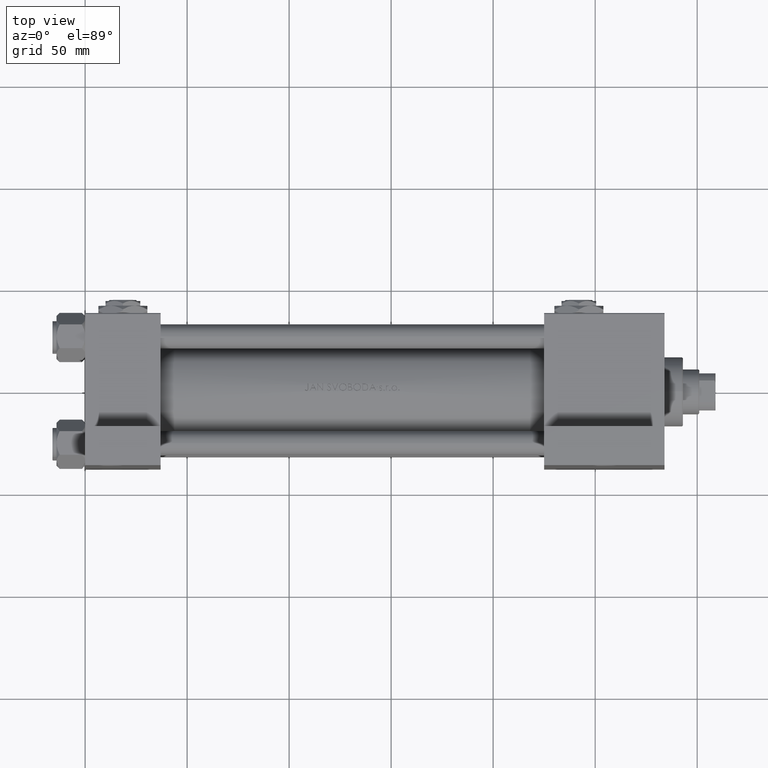
[diagram: clean part render]
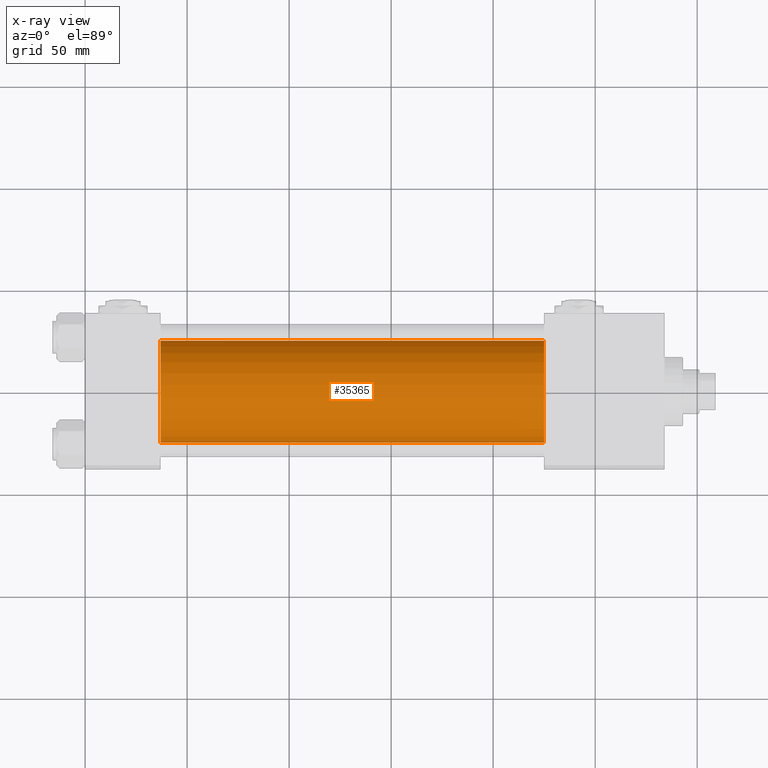
[diagram: x-ray — body ghosted, one internal face saturated and labeled with its STEP entity id]
A machine part, top view, then the same camera in x-ray: the body is ghosted and one INTERNAL B-rep face — a face not visible from any outside direction — is saturated and labeled: STEP entity #35365.
In plain terms, the highlighted cylindrical surface (partial cylindrical patch) has radius 25 mm, axis along (-1, -0, 0).
Its self-contained STEP definition (entity closure, byte-faithful):
#904 = DIRECTION ( 'NONE',  ( 1.000000000000000000, 0.000000000000000000, 0.000000000000000000 ) ) ;
#2604 = CIRCLE ( 'NONE', #13652, 25.00000000000000000 ) ;
#4486 = ORIENTED_EDGE ( 'NONE', *, *, #7815, .F. ) ;
#5462 = DIRECTION ( 'NONE',  ( 0.000000000000000000, 0.000000000000000000, -1.000000000000000000 ) ) ;
#6007 = VECTOR ( 'NONE', #39295, 1000.000000000000000 ) ;
#7815 = EDGE_CURVE ( 'NONE', #28796, #24086, #2604, .T. ) ;
#8185 = CARTESIAN_POINT ( 'NONE',  ( 225.0000000000000000, 0.000000000000000000, 24.50000000000000000 ) ) ;
#11614 = DIRECTION ( 'NONE',  ( -1.000000000000000000, -0.000000000000000000, -0.000000000000000000 ) ) ;
#13652 = AXIS2_PLACEMENT_3D ( 'NONE', #31148, #904, #47428 ) ;
#14090 = CIRCLE ( 'NONE', #45797, 25.00000000000000000 ) ;
#15792 = DIRECTION ( 'NONE',  ( 0.000000000000000000, 0.000000000000000000, 1.000000000000000000 ) ) ;
#16232 = CARTESIAN_POINT ( 'NONE',  ( 225.0000000000000000, 3.061616997868383043E-15, -25.50000000000000355 ) ) ;
#17806 = AXIS2_PLACEMENT_3D ( 'NONE', #45096, #11614, #15792 ) ;
#17899 = DIRECTION ( 'NONE',  ( 1.000000000000000000, 0.000000000000000000, 0.000000000000000000 ) ) ;
#19321 = CARTESIAN_POINT ( 'NONE',  ( 37.00000000000000000, 3.061616997868383043E-15, -25.50000000000000355 ) ) ;
#21631 = CARTESIAN_POINT ( 'NONE',  ( 225.0000000000000000, 0.000000000000000000, -0.5000000000000004441 ) ) ;
#22327 = EDGE_LOOP ( 'NONE', ( #29452, #31155, #4486, #31738 ) ) ;
#24086 = VERTEX_POINT ( 'NONE', #19321 ) ;
#24387 = CARTESIAN_POINT ( 'NONE',  ( 225.0000000000000000, 0.000000000000000000, 24.50000000000000000 ) ) ;
#24519 = CARTESIAN_POINT ( 'NONE',  ( 225.0000000000000000, 3.061616997868383043E-15, -25.50000000000000355 ) ) ;
#26493 = CYLINDRICAL_SURFACE ( 'NONE', #17806, 25.00000000000000000 ) ;
#28796 = VERTEX_POINT ( 'NONE', #35221 ) ;
#29452 = ORIENTED_EDGE ( 'NONE', *, *, #42450, .T. ) ;
#31148 = CARTESIAN_POINT ( 'NONE',  ( 37.00000000000000000, 0.000000000000000000, -0.5000000000000004441 ) ) ;
#31155 = ORIENTED_EDGE ( 'NONE', *, *, #45566, .T. ) ;
#31738 = ORIENTED_EDGE ( 'NONE', *, *, #36939, .F. ) ;
#35221 = CARTESIAN_POINT ( 'NONE',  ( 37.00000000000000000, 0.000000000000000000, 24.50000000000000000 ) ) ;
#35365 = ADVANCED_FACE ( 'NONE', ( #42352 ), #26493, .F. ) ;
#35771 = VERTEX_POINT ( 'NONE', #16232 ) ;
#36939 = EDGE_CURVE ( 'NONE', #43587, #28796, #43982, .T. ) ;
#37840 = VECTOR ( 'NONE', #46845, 1000.000000000000000 ) ;
#39295 = DIRECTION ( 'NONE',  ( -1.000000000000000000, -0.000000000000000000, -0.000000000000000000 ) ) ;
#39429 = LINE ( 'NONE', #24519, #37840 ) ;
#42352 = FACE_OUTER_BOUND ( 'NONE', #22327, .T. ) ;
#42450 = EDGE_CURVE ( 'NONE', #43587, #35771, #14090, .T. ) ;
#43587 = VERTEX_POINT ( 'NONE', #8185 ) ;
#43982 = LINE ( 'NONE', #24387, #6007 ) ;
#45096 = CARTESIAN_POINT ( 'NONE',  ( 225.0000000000000000, 0.000000000000000000, -0.5000000000000004441 ) ) ;
#45566 = EDGE_CURVE ( 'NONE', #35771, #24086, #39429, .T. ) ;
#45797 = AXIS2_PLACEMENT_3D ( 'NONE', #21631, #17899, #5462 ) ;
#46845 = DIRECTION ( 'NONE',  ( -1.000000000000000000, -0.000000000000000000, -0.000000000000000000 ) ) ;
#47428 = DIRECTION ( 'NONE',  ( 0.000000000000000000, 0.000000000000000000, -1.000000000000000000 ) ) ;